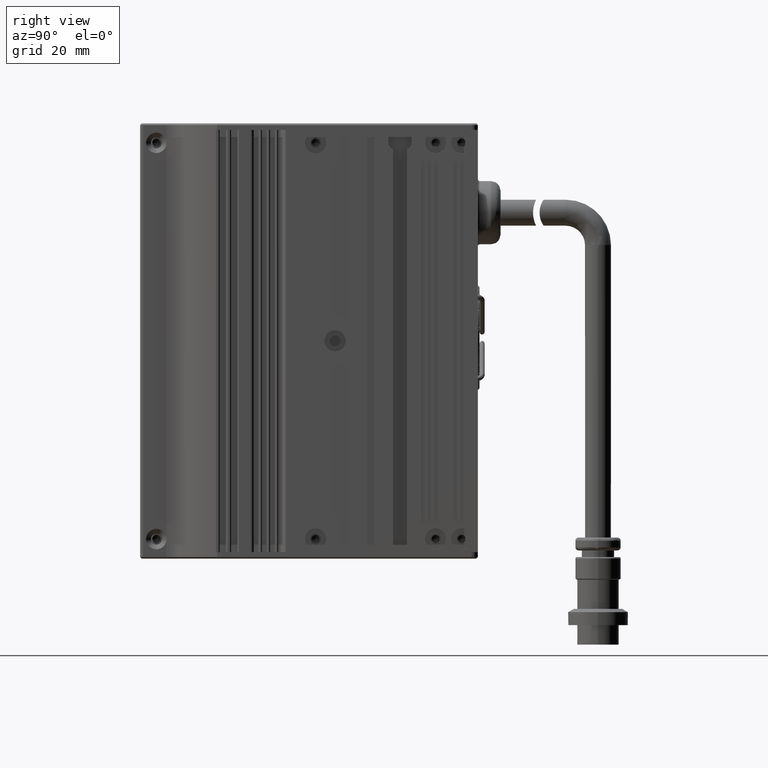
[diagram: clean part render]
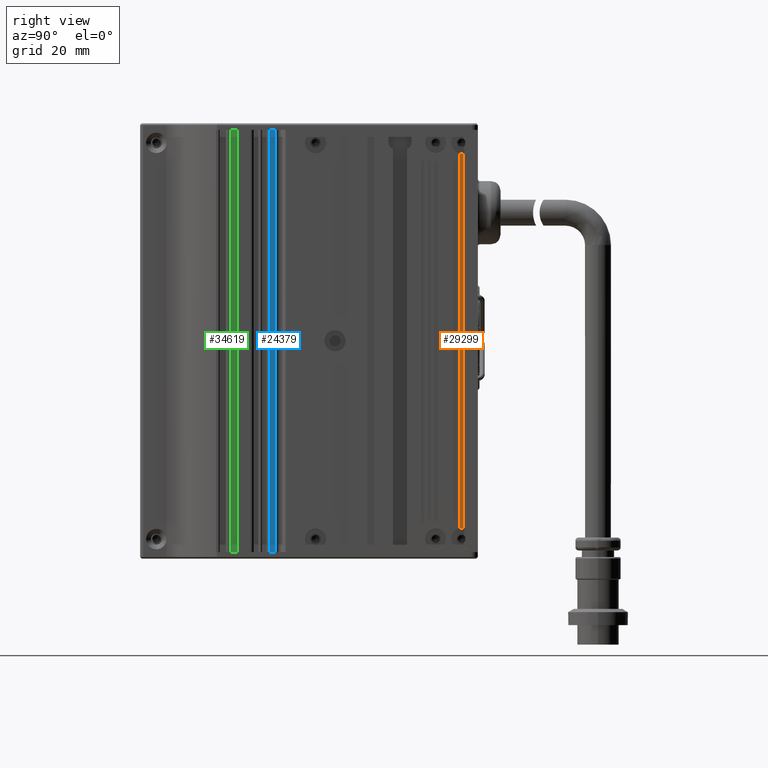
[diagram: same view with three faces highlighted in distinct colors, each labeled with its STEP entity id]
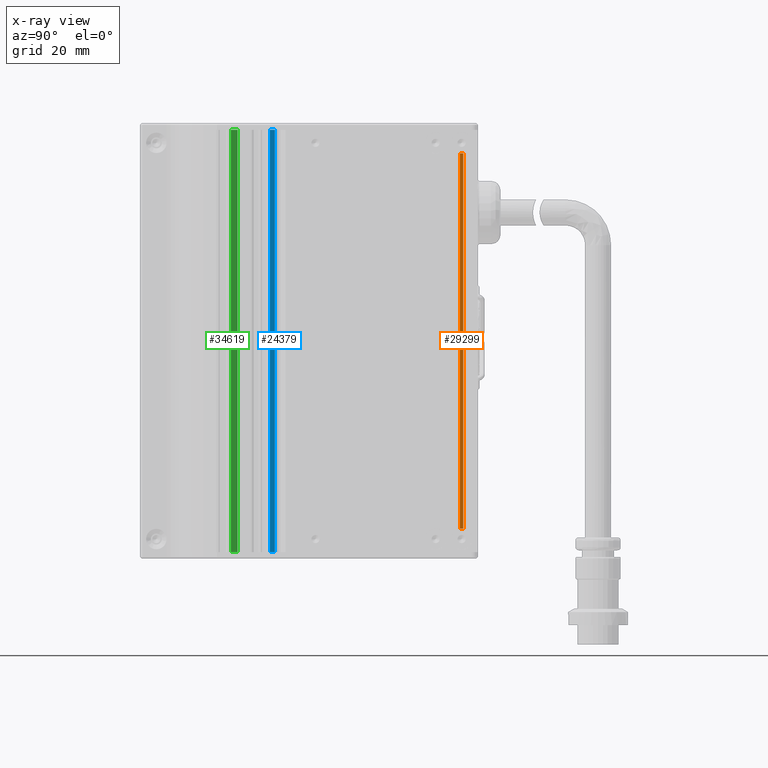
[diagram: x-ray of the same camera — body ghosted, the three highlighted faces saturated]
A machine part, right view with three faces highlighted in distinct colors.
The next image is the same camera in x-ray (body ghosted, the three faces saturated) — at least one of them is partly hidden behind the body in this view.
Their STEP definitions:

[orange] entity #29299 — the highlighted planar face has unit normal (-1, 0, 0).
#196 = CARTESIAN_POINT ( 'NONE',  ( -13.91201180637545100, 38.50452420306967100, -65.00000000000000000 ) ) ;
#440 = DIRECTION ( 'NONE',  ( 0.0000000000000000000, 0.0000000000000000000, 1.000000000000000000 ) ) ;
#661 = LINE ( 'NONE', #21254, #26728 ) ;
#2603 = AXIS2_PLACEMENT_3D ( 'NONE', #8089, #52294, #47190 ) ;
#3228 = VECTOR ( 'NONE', #34213, 1000.000000000000000 ) ;
#4748 = CARTESIAN_POINT ( 'NONE',  ( -13.91201180637545100, 38.50452420306967100, -57.78869185533371700 ) ) ;
#6886 = VERTEX_POINT ( 'NONE', #58025 ) ;
#8089 = CARTESIAN_POINT ( 'NONE',  ( -13.91201180637545100, 39.00452420306967100, -61.00000000000000000 ) ) ;
#10489 = EDGE_CURVE ( 'NONE', #14348, #16192, #17974, .T. ) ;
#11301 = AXIS2_PLACEMENT_3D ( 'NONE', #24991, #41733, #63867 ) ;
#13138 = ORIENTED_EDGE ( 'NONE', *, *, #10489, .T. ) ;
#14348 = VERTEX_POINT ( 'NONE', #14499 ) ;
#14499 = CARTESIAN_POINT ( 'NONE',  ( -13.91201180637545100, 38.50452420306967100, 57.78869185533372400 ) ) ;
#16192 = VERTEX_POINT ( 'NONE', #4748 ) ;
#17974 = LINE ( 'NONE', #40739, #3228 ) ;
#19215 = EDGE_LOOP ( 'NONE', ( #45718, #32364, #65271, #26769, #13138, #39012 ) ) ;
#20373 = EDGE_CURVE ( 'NONE', #51367, #6886, #58269, .T. ) ;
#21254 = CARTESIAN_POINT ( 'NONE',  ( -13.91201180637545100, 39.50452420306967100, -65.00000000000000000 ) ) ;
#23893 = EDGE_CURVE ( 'NONE', #47288, #43578, #55602, .T. ) ;
#24624 = EDGE_CURVE ( 'NONE', #6886, #16192, #71962, .T. ) ;
#24991 = CARTESIAN_POINT ( 'NONE',  ( -13.91201180637545100, 39.00452420306967100, 61.00000000000000000 ) ) ;
#26728 = VECTOR ( 'NONE', #54996, 1000.000000000000000 ) ;
#26769 = ORIENTED_EDGE ( 'NONE', *, *, #43827, .F. ) ;
#27626 = CARTESIAN_POINT ( 'NONE',  ( -13.91201180637545100, 39.50452420306967100, 57.78869185533371700 ) ) ;
#27917 = PLANE ( 'NONE',  #61309 ) ;
#29299 = ADVANCED_FACE ( 'NONE', ( #32588 ), #27917, .F. ) ;
#32364 = ORIENTED_EDGE ( 'NONE', *, *, #46551, .T. ) ;
#32588 = FACE_OUTER_BOUND ( 'NONE', #19215, .T. ) ;
#32662 = DIRECTION ( 'NONE',  ( 0.0000000000000000000, 0.0000000000000000000, -1.000000000000000000 ) ) ;
#34213 = DIRECTION ( 'NONE',  ( 0.0000000000000000000, 0.0000000000000000000, -1.000000000000000000 ) ) ;
#39012 = ORIENTED_EDGE ( 'NONE', *, *, #24624, .F. ) ;
#40739 = CARTESIAN_POINT ( 'NONE',  ( -13.91201180637545100, 38.50452420306967100, -65.00000000000000000 ) ) ;
#41733 = DIRECTION ( 'NONE',  ( 1.000000000000000000, -0.0000000000000000000, -0.0000000000000000000 ) ) ;
#43578 = VERTEX_POINT ( 'NONE', #27626 ) ;
#43827 = EDGE_CURVE ( 'NONE', #14348, #47288, #52141, .T. ) ;
#45718 = ORIENTED_EDGE ( 'NONE', *, *, #20373, .F. ) ;
#46551 = EDGE_CURVE ( 'NONE', #51367, #43578, #661, .T. ) ;
#47190 = DIRECTION ( 'NONE',  ( 0.0000000000000000000, 0.0000000000000000000, -1.000000000000000000 ) ) ;
#47288 = VERTEX_POINT ( 'NONE', #58964 ) ;
#51367 = VERTEX_POINT ( 'NONE', #58547 ) ;
#52141 = CIRCLE ( 'NONE', #59262, 3.250000000000002700 ) ;
#52294 = DIRECTION ( 'NONE',  ( 1.000000000000000000, -0.0000000000000000000, -0.0000000000000000000 ) ) ;
#54996 = DIRECTION ( 'NONE',  ( 0.0000000000000000000, -0.0000000000000000000, 1.000000000000000000 ) ) ;
#55602 = CIRCLE ( 'NONE', #11301, 3.250000000000002700 ) ;
#58025 = CARTESIAN_POINT ( 'NONE',  ( -13.91201180637545100, 39.00452420306967100, -57.74999999999999300 ) ) ;
#58269 = CIRCLE ( 'NONE', #2603, 3.250000000000002700 ) ;
#58547 = CARTESIAN_POINT ( 'NONE',  ( -13.91201180637545100, 39.50452420306967100, -57.78869185533371000 ) ) ;
#58964 = CARTESIAN_POINT ( 'NONE',  ( -13.91201180637545100, 39.00452420306967100, 57.74999999999999300 ) ) ;
#59063 = DIRECTION ( 'NONE',  ( 0.0000000000000000000, 0.0000000000000000000, -1.000000000000000000 ) ) ;
#59262 = AXIS2_PLACEMENT_3D ( 'NONE', #64188, #69783, #59063 ) ;
#61040 = CARTESIAN_POINT ( 'NONE',  ( -13.91201180637545100, 39.00452420306967100, -61.00000000000000000 ) ) ;
#61309 = AXIS2_PLACEMENT_3D ( 'NONE', #196, #61415, #440 ) ;
#61415 = DIRECTION ( 'NONE',  ( -1.000000000000000000, 0.0000000000000000000, 0.0000000000000000000 ) ) ;
#63867 = DIRECTION ( 'NONE',  ( 0.0000000000000000000, 0.0000000000000000000, -1.000000000000000000 ) ) ;
#64188 = CARTESIAN_POINT ( 'NONE',  ( -13.91201180637545100, 39.00452420306967100, 61.00000000000000000 ) ) ;
#65271 = ORIENTED_EDGE ( 'NONE', *, *, #23893, .F. ) ;
#65810 = AXIS2_PLACEMENT_3D ( 'NONE', #61040, #71298, #32662 ) ;
#69783 = DIRECTION ( 'NONE',  ( 1.000000000000000000, -0.0000000000000000000, -0.0000000000000000000 ) ) ;
#71298 = DIRECTION ( 'NONE',  ( 1.000000000000000000, -0.0000000000000000000, -0.0000000000000000000 ) ) ;
#71962 = CIRCLE ( 'NONE', #65810, 3.250000000000002700 ) ;

[blue] entity #24379 — the highlighted planar face has unit normal (-1, 0, 0).
#1551 = CARTESIAN_POINT ( 'NONE',  ( -15.66201180637584400, -18.49547579693033900, -65.00000000000000000 ) ) ;
#4812 = LINE ( 'NONE', #41897, #25642 ) ;
#4871 = EDGE_CURVE ( 'NONE', #13481, #6293, #4812, .T. ) ;
#6293 = VERTEX_POINT ( 'NONE', #70269 ) ;
#7596 = LINE ( 'NONE', #20718, #33690 ) ;
#9798 = DIRECTION ( 'NONE',  ( -0.0000000000000000000, -1.000000000000000000, 1.665334536937734300E-016 ) ) ;
#9873 = DIRECTION ( 'NONE',  ( -0.0000000000000000000, 1.665334536937734300E-016, 1.000000000000000000 ) ) ;
#13481 = VERTEX_POINT ( 'NONE', #1551 ) ;
#14326 = VERTEX_POINT ( 'NONE', #36872 ) ;
#14390 = CARTESIAN_POINT ( 'NONE',  ( -15.66201180637584400, -19.99547579693031800, 65.00000000000000000 ) ) ;
#14635 = DIRECTION ( 'NONE',  ( 0.0000000000000000000, 1.000000000000000000, -1.665334536937734300E-016 ) ) ;
#15190 = CARTESIAN_POINT ( 'NONE',  ( -15.66201180637584400, -18.49547579693031800, 65.00000000000000000 ) ) ;
#20718 = CARTESIAN_POINT ( 'NONE',  ( -15.66201180637584400, -18.49547579693031800, 65.00000000000000000 ) ) ;
#24379 = ADVANCED_FACE ( 'NONE', ( #51980 ), #63057, .F. ) ;
#24540 = EDGE_CURVE ( 'NONE', #71133, #14326, #7596, .T. ) ;
#24900 = CARTESIAN_POINT ( 'NONE',  ( -15.66201180637584400, -19.99547579693031800, 65.00000000000000000 ) ) ;
#25642 = VECTOR ( 'NONE', #9798, 1000.000000000000000 ) ;
#29554 = VECTOR ( 'NONE', #53250, 1000.000000000000000 ) ;
#31438 = EDGE_CURVE ( 'NONE', #71133, #6293, #59109, .T. ) ;
#33690 = VECTOR ( 'NONE', #14635, 1000.000000000000000 ) ;
#36872 = CARTESIAN_POINT ( 'NONE',  ( -15.66201180637584400, -18.49547579693031800, 65.00000000000000000 ) ) ;
#36966 = VECTOR ( 'NONE', #9873, 1000.000000000000000 ) ;
#38118 = ORIENTED_EDGE ( 'NONE', *, *, #4871, .F. ) ;
#38775 = ORIENTED_EDGE ( 'NONE', *, *, #31438, .T. ) ;
#41897 = CARTESIAN_POINT ( 'NONE',  ( -15.66201180637584400, -18.49547579693033900, -65.00000000000000000 ) ) ;
#43914 = ORIENTED_EDGE ( 'NONE', *, *, #24540, .F. ) ;
#46975 = DIRECTION ( 'NONE',  ( 0.0000000000000000000, 1.665334536937734300E-016, 1.000000000000000000 ) ) ;
#49489 = AXIS2_PLACEMENT_3D ( 'NONE', #69147, #52323, #46975 ) ;
#51980 = FACE_OUTER_BOUND ( 'NONE', #55199, .T. ) ;
#52323 = DIRECTION ( 'NONE',  ( -1.000000000000000000, 0.0000000000000000000, 0.0000000000000000000 ) ) ;
#53250 = DIRECTION ( 'NONE',  ( 0.0000000000000000000, -1.665334536937734300E-016, -1.000000000000000000 ) ) ;
#55199 = EDGE_LOOP ( 'NONE', ( #68023, #43914, #38775, #38118 ) ) ;
#56122 = LINE ( 'NONE', #15190, #36966 ) ;
#59109 = LINE ( 'NONE', #14390, #29554 ) ;
#59503 = EDGE_CURVE ( 'NONE', #13481, #14326, #56122, .T. ) ;
#63057 = PLANE ( 'NONE',  #49489 ) ;
#68023 = ORIENTED_EDGE ( 'NONE', *, *, #59503, .T. ) ;
#69147 = CARTESIAN_POINT ( 'NONE',  ( -15.66201180637584400, -18.49547579693031800, 65.00000000000000000 ) ) ;
#70269 = CARTESIAN_POINT ( 'NONE',  ( -15.66201180637584400, -19.99547579693033900, -65.00000000000000000 ) ) ;
#71133 = VERTEX_POINT ( 'NONE', #24900 ) ;

[green] entity #34619 — the highlighted planar face has unit normal (-1, 0, 0).
#371 = ORIENTED_EDGE ( 'NONE', *, *, #37443, .T. ) ;
#4564 = EDGE_CURVE ( 'NONE', #46749, #10333, #14452, .T. ) ;
#4688 = LINE ( 'NONE', #69813, #34275 ) ;
#7272 = DIRECTION ( 'NONE',  ( -1.000000000000000000, 0.0000000000000000000, 0.0000000000000000000 ) ) ;
#10333 = VERTEX_POINT ( 'NONE', #17144 ) ;
#14452 = LINE ( 'NONE', #28606, #29230 ) ;
#14904 = CARTESIAN_POINT ( 'NONE',  ( -16.16201180637543900, -31.99547579693032200, 65.00000000000000000 ) ) ;
#15286 = EDGE_CURVE ( 'NONE', #10333, #42146, #4688, .T. ) ;
#17144 = CARTESIAN_POINT ( 'NONE',  ( -16.16201180637543900, -29.99547579693033900, -65.00000000000000000 ) ) ;
#17734 = LINE ( 'NONE', #28309, #64745 ) ;
#18944 = VERTEX_POINT ( 'NONE', #19008 ) ;
#19008 = CARTESIAN_POINT ( 'NONE',  ( -16.16201180637543900, -31.99547579693032200, 65.00000000000000000 ) ) ;
#26531 = LINE ( 'NONE', #14904, #60403 ) ;
#28309 = CARTESIAN_POINT ( 'NONE',  ( -16.16201180637543900, -2.245475796930319800, 65.00000000000000000 ) ) ;
#28606 = CARTESIAN_POINT ( 'NONE',  ( -16.16201180637543900, -29.99547579693031500, 65.00000000000000000 ) ) ;
#29230 = VECTOR ( 'NONE', #51381, 1000.000000000000000 ) ;
#32100 = CARTESIAN_POINT ( 'NONE',  ( -16.16201180637543900, -29.99547579693031800, 65.00000000000000000 ) ) ;
#34275 = VECTOR ( 'NONE', #41842, 1000.000000000000000 ) ;
#34619 = ADVANCED_FACE ( 'NONE', ( #72099 ), #39855, .F. ) ;
#37443 = EDGE_CURVE ( 'NONE', #18944, #42146, #26531, .T. ) ;
#37625 = EDGE_CURVE ( 'NONE', #46749, #18944, #17734, .T. ) ;
#39855 = PLANE ( 'NONE',  #50113 ) ;
#40800 = DIRECTION ( 'NONE',  ( 0.0000000000000000000, 1.665334536937734300E-016, 1.000000000000000000 ) ) ;
#41842 = DIRECTION ( 'NONE',  ( -0.0000000000000000000, -1.000000000000000000, 1.665334536937734300E-016 ) ) ;
#42146 = VERTEX_POINT ( 'NONE', #45540 ) ;
#42396 = DIRECTION ( 'NONE',  ( 0.0000000000000000000, -1.665334536937734300E-016, -1.000000000000000000 ) ) ;
#45540 = CARTESIAN_POINT ( 'NONE',  ( -16.16201180637543900, -31.99547579693034300, -65.00000000000000000 ) ) ;
#46749 = VERTEX_POINT ( 'NONE', #32100 ) ;
#50113 = AXIS2_PLACEMENT_3D ( 'NONE', #62906, #7272, #40800 ) ;
#50224 = EDGE_LOOP ( 'NONE', ( #61096, #67907, #371, #61493 ) ) ;
#51097 = DIRECTION ( 'NONE',  ( -0.0000000000000000000, -1.000000000000000000, 1.665334536937734300E-016 ) ) ;
#51381 = DIRECTION ( 'NONE',  ( -0.0000000000000000000, -1.665334536937734300E-016, -1.000000000000000000 ) ) ;
#60403 = VECTOR ( 'NONE', #42396, 1000.000000000000000 ) ;
#61096 = ORIENTED_EDGE ( 'NONE', *, *, #4564, .F. ) ;
#61493 = ORIENTED_EDGE ( 'NONE', *, *, #15286, .F. ) ;
#62906 = CARTESIAN_POINT ( 'NONE',  ( -16.16201180637543900, -29.99547579693031500, 65.00000000000000000 ) ) ;
#64745 = VECTOR ( 'NONE', #51097, 1000.000000000000000 ) ;
#67907 = ORIENTED_EDGE ( 'NONE', *, *, #37625, .T. ) ;
#69813 = CARTESIAN_POINT ( 'NONE',  ( -16.16201180637543900, -2.245475796930341600, -65.00000000000000000 ) ) ;
#72099 = FACE_OUTER_BOUND ( 'NONE', #50224, .T. ) ;